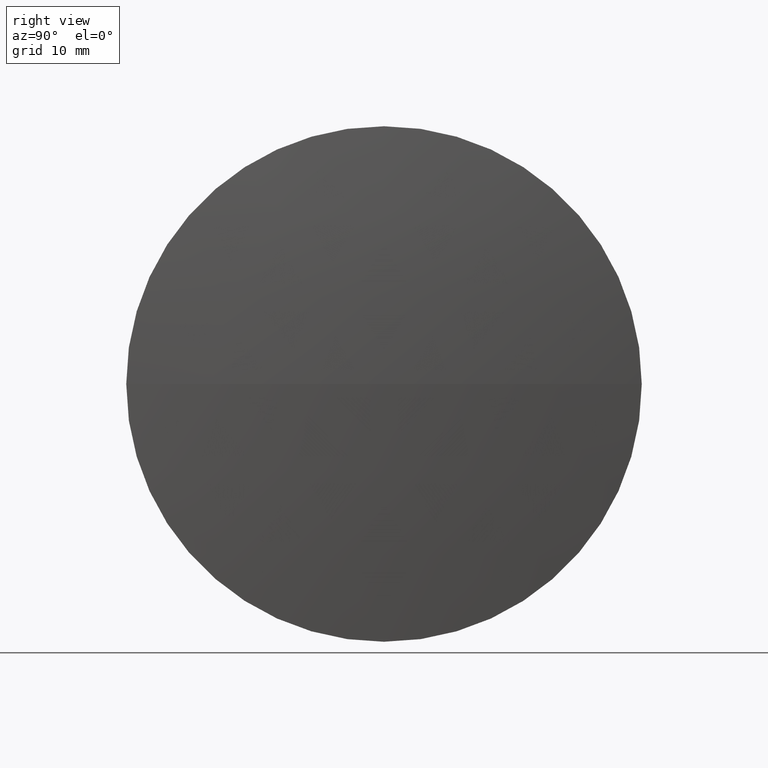
[diagram: clean part render]
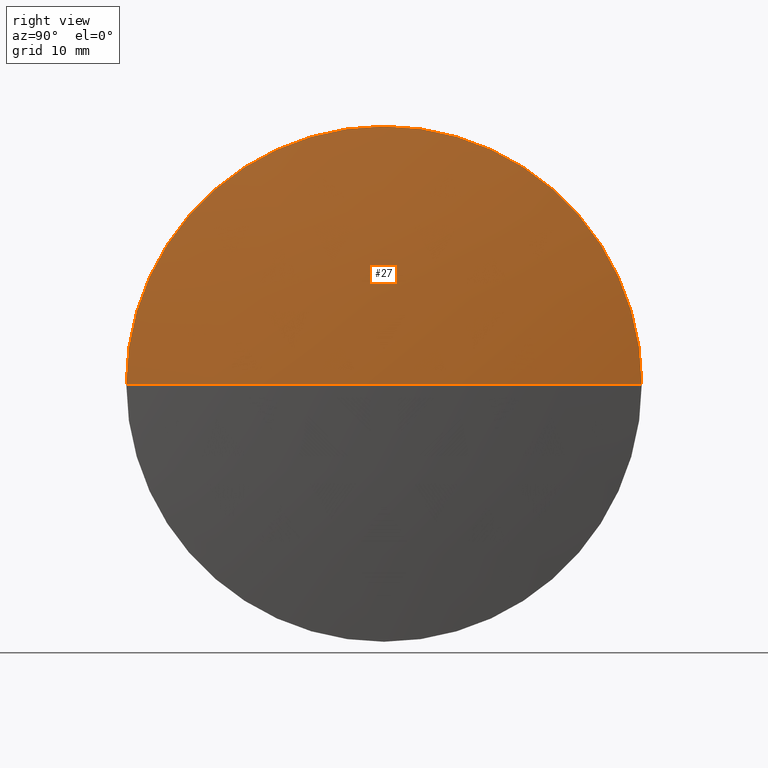
[diagram: same view with one face highlighted and labeled with its STEP entity id]
A machine part, right view. The second image highlights one B-rep face of the part: STEP entity #27.
In plain terms, the highlighted spherical surface has radius 231.118 mm.
Its self-contained STEP definition (entity closure, byte-faithful):
#12 = AXIS2_PLACEMENT_3D ( 'NONE', #57, #240, #84 ) ;
#22 = DIRECTION ( 'NONE',  ( -0.0000000000000000000, 0.0000000000000000000, -1.000000000000000000 ) ) ;
#27 = ADVANCED_FACE ( 'NONE', ( #338 ), #207, .T. ) ;
#37 = AXIS2_PLACEMENT_3D ( 'NONE', #264, #90, #96 ) ;
#43 = AXIS2_PLACEMENT_3D ( 'NONE', #248, #265, #247 ) ;
#49 = CIRCLE ( 'NONE', #43, 231.1183175053913000 ) ;
#50 = DIRECTION ( 'NONE',  ( 0.0000000000000000000, 1.000000000000000000, 0.0000000000000000000 ) ) ;
#57 = CARTESIAN_POINT ( 'NONE',  ( -55.30197567035203600, 97.23222604636875100, 0.0000000000000000000 ) ) ;
#71 = CIRCLE ( 'NONE', #12, 231.1183175053913300 ) ;
#77 = ORIENTED_EDGE ( 'NONE', *, *, #230, .F. ) ;
#83 = AXIS2_PLACEMENT_3D ( 'NONE', #160, #22, #50 ) ;
#84 = DIRECTION ( 'NONE',  ( 0.0000000000000000000, 1.000000000000000000, 1.224646799147353000E-016 ) ) ;
#86 = CARTESIAN_POINT ( 'NONE',  ( 174.4163664064679400, 97.23222604636956100, 0.0000000000000000000 ) ) ;
#90 = DIRECTION ( 'NONE',  ( -1.000000000000000000, -0.0000000000000000000, -0.0000000000000000000 ) ) ;
#96 = DIRECTION ( 'NONE',  ( 0.0000000000000000000, 0.0000000000000000000, 1.000000000000000000 ) ) ;
#109 = CARTESIAN_POINT ( 'NONE',  ( 174.4163664064679700, 71.83222604636924300, -3.110602869834216900E-015 ) ) ;
#125 = ORIENTED_EDGE ( 'NONE', *, *, #174, .F. ) ;
#138 = VERTEX_POINT ( 'NONE', #287 ) ;
#155 = CIRCLE ( 'NONE', #37, 25.39999999999999100 ) ;
#160 = CARTESIAN_POINT ( 'NONE',  ( -55.30197567035203600, 97.23222604636875100, 0.0000000000000000000 ) ) ;
#161 = ORIENTED_EDGE ( 'NONE', *, *, #279, .T. ) ;
#166 = CARTESIAN_POINT ( 'NONE',  ( 174.4163664064679400, 97.23222604636956100, 25.39999999999999100 ) ) ;
#167 = VERTEX_POINT ( 'NONE', #109 ) ;
#169 = CIRCLE ( 'NONE', #206, 25.39999999999999100 ) ;
#170 = VERTEX_POINT ( 'NONE', #166 ) ;
#174 = EDGE_CURVE ( 'NONE', #167, #170, #169, .T. ) ;
#178 = VERTEX_POINT ( 'NONE', #214 ) ;
#206 = AXIS2_PLACEMENT_3D ( 'NONE', #86, #321, #315 ) ;
#207 = SPHERICAL_SURFACE ( 'NONE', #83, 231.1183175053913000 ) ;
#214 = CARTESIAN_POINT ( 'NONE',  ( 174.4163664064679700, 122.6322260463690700, 0.0000000000000000000 ) ) ;
#230 = EDGE_CURVE ( 'NONE', #138, #167, #71, .T. ) ;
#240 = DIRECTION ( 'NONE',  ( 0.0000000000000000000, 1.224646799147353200E-016, -1.000000000000000000 ) ) ;
#247 = DIRECTION ( 'NONE',  ( 1.000000000000000000, 0.0000000000000000000, 0.0000000000000000000 ) ) ;
#248 = CARTESIAN_POINT ( 'NONE',  ( -55.30197567035203600, 97.23222604636875100, 0.0000000000000000000 ) ) ;
#255 = EDGE_CURVE ( 'NONE', #170, #178, #155, .T. ) ;
#264 = CARTESIAN_POINT ( 'NONE',  ( 174.4163664064679400, 97.23222604636956100, 0.0000000000000000000 ) ) ;
#265 = DIRECTION ( 'NONE',  ( -0.0000000000000000000, 0.0000000000000000000, 1.000000000000000000 ) ) ;
#279 = EDGE_CURVE ( 'NONE', #138, #178, #49, .T. ) ;
#287 = CARTESIAN_POINT ( 'NONE',  ( 175.8163418350392800, 97.23222604636876600, 0.0000000000000000000 ) ) ;
#294 = ORIENTED_EDGE ( 'NONE', *, *, #255, .F. ) ;
#311 = EDGE_LOOP ( 'NONE', ( #77, #161, #294, #125 ) ) ;
#315 = DIRECTION ( 'NONE',  ( 0.0000000000000000000, 0.0000000000000000000, 1.000000000000000000 ) ) ;
#321 = DIRECTION ( 'NONE',  ( -1.000000000000000000, -0.0000000000000000000, -0.0000000000000000000 ) ) ;
#338 = FACE_OUTER_BOUND ( 'NONE', #311, .T. ) ;